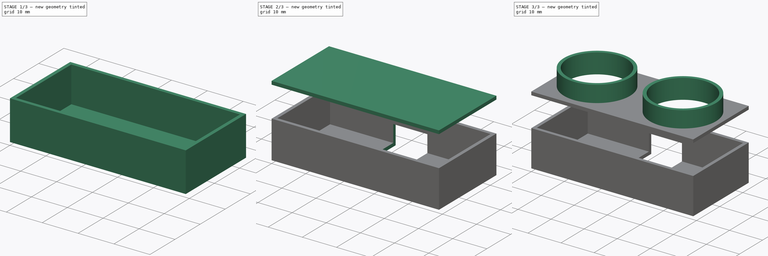
[diagram: build sequence overview — one tinted view per stage of 3, left to right]
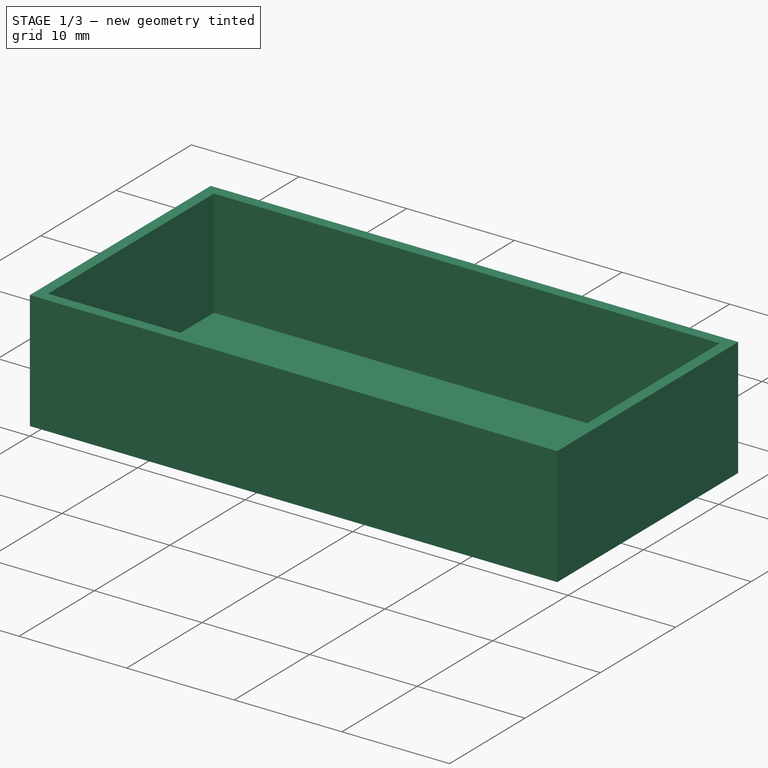
[diagram: stage 1 of 3 — iso view after this stage's code; geometry added in this stage tinted green]
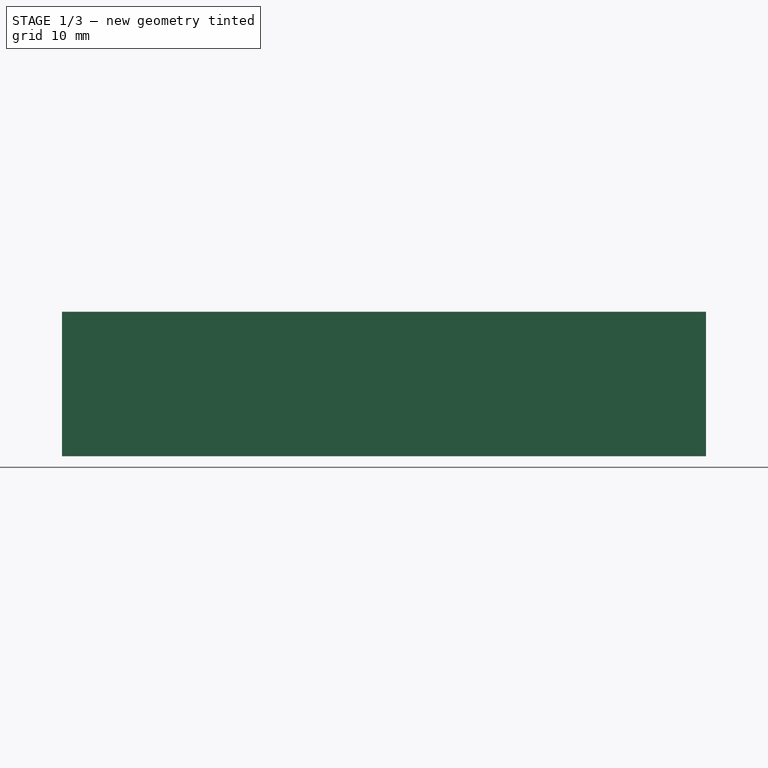
[diagram: stage 1 of 3 — front view after this stage's code; geometry added in this stage tinted green]
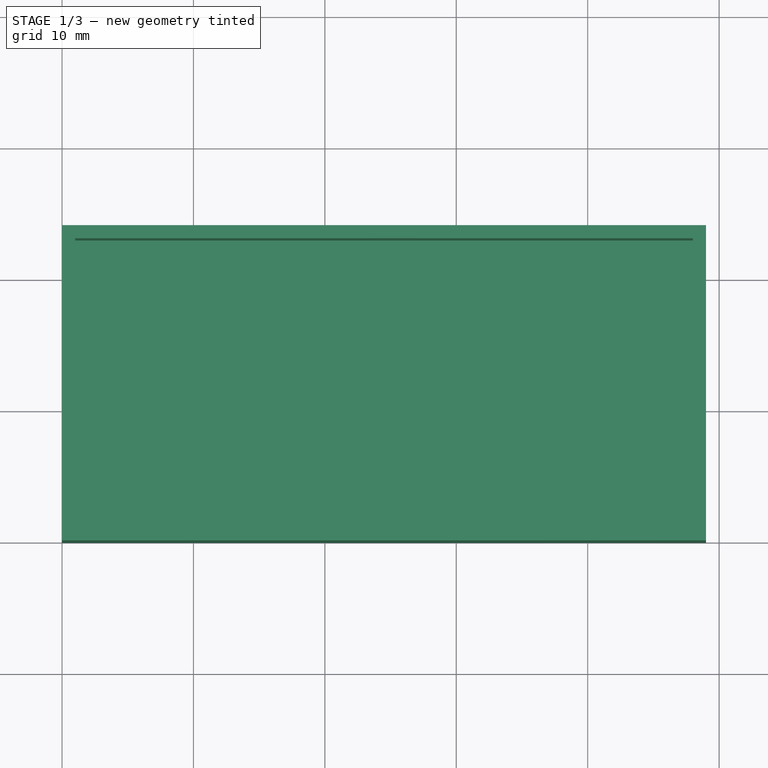
[diagram: stage 1 of 3 — top view after this stage's code; geometry added in this stage tinted green]
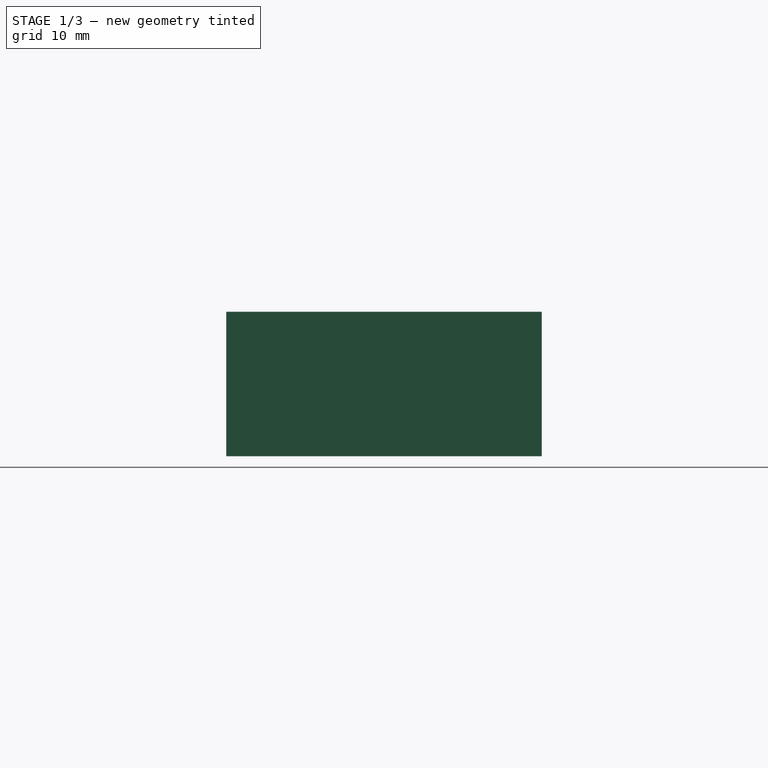
[diagram: stage 1 of 3 — right view after this stage's code; geometry added in this stage tinted green]
FCSTD DOCUMENT  (FreeCAD 2023.1231R38924 (Git))
Label: d-sensor-bracket
License: All rights reserved
LicenseURL: http://en.wikipedia.org/wiki/All_rights_reserved
objects: Sketcher::SketchObject×7, PartDesign::Pad×4, PartDesign::Pocket×3, PartDesign::Body×2
note: 37 computed .brp shape members not serialized (recipe doc carries the construction recipe); baked Part::Feature solids carry a one-line shape summary decoded from their .brp

FEATURE [PartDesign::Body] Body  label="Front"
  AutoGroupSolids = false
  ClaimAllChildren = false
  ExportMode = 0
  Group = -> [Sketch,Pad,Sketch001,Pad001,Sketch002,Pocket]
  InvalidShape = false
  Origin = -> Origin
  Tip = -> Pocket
  TreeRank = 0
  ValidateShape = false
  _ExportChildren = -> [Pad,Pad001,Pocket]
  _GroupVersion = 1
FEATURE [Sketcher::SketchObject] Sketch003
  ArcFitTolerance = 0
  AttachmentSupport = -> [XY_Plane001]
  ExternalBSplineMaxDegree = 0
  ExternalBSplineTolerance = 0
  FullyConstrained = true
  InternalTolerance = 1e-06
  InvalidShape = false
  MakeInternals = false
  MapMode = 5
  Support = -> [XY_Plane001]
  TreeRank = 0
  ValidateShape = false
  sketch-geometry (4):
    g0: LineSegment StartX=0 StartY=24 StartZ=0 EndX=49 EndY=24 EndZ=0
    g1: LineSegment StartX=49 StartY=24 StartZ=0 EndX=49 EndY=0 EndZ=0
    g2: LineSegment StartX=49 StartY=0 StartZ=0 EndX=0 EndY=0 EndZ=0
    g3: LineSegment StartX=0 StartY=0 StartZ=0 EndX=0 EndY=24 EndZ=0
  constraints (12):
    c: Coincident(g0,g1)
    c: Coincident(g1,g2)
    c: Coincident(g2,g3)
    c: Coincident(g3,g0)
    c: Horizontal(g0)
    c: Horizontal(g2)
    c: Vertical(g1)
    c: Vertical(g3)
    c: Distance(g1) = 24
    c: Distance(g0) = 49
    c: DistanceX(g2,g-1) = 0
    c: DistanceY(g2,g-1) = 0
FEATURE [PartDesign::Pad] Pad002
  AddSubType = 0
  AllowMultiFace = false
  AutoTaperInnerAngle = true
  CheckUpToFaceLimits = true
  ClaimChildren = false
  Direction = (0,0,1)
  Fit = 0
  FitJoin = 0
  InnerFit = 0
  InnerFitJoin = 0
  InvalidShape = false
  Length = 1
  Length2 = 100
  NewSolid = false
  Profile = -> Sketch003
  Suppress = false
  TaperInnerAngle = 0
  TaperInnerAngleRev = 0
  TreeRank = 0
  Type = 0
  ValidateShape = false
  _ProfileBasedVersion = 0
FEATURE [Sketcher::SketchObject] Sketch004
  ArcFitTolerance = 0
  AttachmentSupport = -> [XY_Plane001]
  ExternalBSplineMaxDegree = 0
  ExternalBSplineTolerance = 0
  FullyConstrained = true
  InternalTolerance = 1e-06
  InvalidShape = false
  MakeInternals = false
  MapMode = 5
  Support = -> [XY_Plane001]
  TreeRank = 0
  ValidateShape = false
  sketch-geometry (8):
    g0: LineSegment StartX=0 StartY=24 StartZ=0 EndX=49 EndY=24 EndZ=0
    g1: LineSegment StartX=49 StartY=24 StartZ=0 EndX=49 EndY=0 EndZ=0
    g2: LineSegment StartX=49 StartY=0 StartZ=0 EndX=0 EndY=0 EndZ=0
    g3: LineSegment StartX=0 StartY=0 StartZ=0 EndX=0 EndY=24 EndZ=0
    g4: LineSegment StartX=1 StartY=23 StartZ=0 EndX=48 EndY=23 EndZ=0
    g5: LineSegment StartX=48 StartY=23 StartZ=0 EndX=48 EndY=1 EndZ=0
    g6: LineSegment StartX=48 StartY=1 StartZ=0 EndX=1 EndY=1 EndZ=0
    g7: LineSegment StartX=1 StartY=1 StartZ=0 EndX=1 EndY=23 EndZ=0
  constraints (24):
    c: Coincident(g0,g1)
    c: Coincident(g1,g2)
    c: Coincident(g2,g3)
    c: Coincident(g3,g0)
    c: Horizontal(g0)
    c: Horizontal(g2)
    c: Vertical(g1)
    c: Vertical(g3)
    c: Coincident(g4,g5)
    c: Coincident(g5,g6)
    c: Coincident(g6,g7)
    c: Coincident(g7,g4)
    c: Horizontal(g4)
    c: Horizontal(g6)
    c: Vertical(g5)
    c: Vertical(g7)
    c: Distance(g0) = 49
    c: Distance(g1) = 24
    c: Distance(g7) = 22
    c: Distance(g6) = 47
    c: DistanceX(g-1,g2) = 0
    c: DistanceY(g2,g-1) = 0
    c: DistanceY(g2,g6) = 1
    c: DistanceX(g2,g6) = 1
FEATURE [PartDesign::Pad] Pad003
  AddSubType = 0
  AllowMultiFace = false
  AutoTaperInnerAngle = true
  BaseFeature = -> Pad002
  CheckUpToFaceLimits = true
  ClaimChildren = false
  Direction = (0,0,1)
  Fit = 0
  FitJoin = 0
  InnerFit = 0
  InnerFitJoin = 0
  InvalidShape = false
  Length = 11
  Length2 = 100
  NewSolid = false
  Profile = -> Sketch004
  Suppress = false
  TaperInnerAngle = 0
  TaperInnerAngleRev = 0
  TreeRank = 0
  Type = 0
  ValidateShape = false
  _ProfileBasedVersion = 0
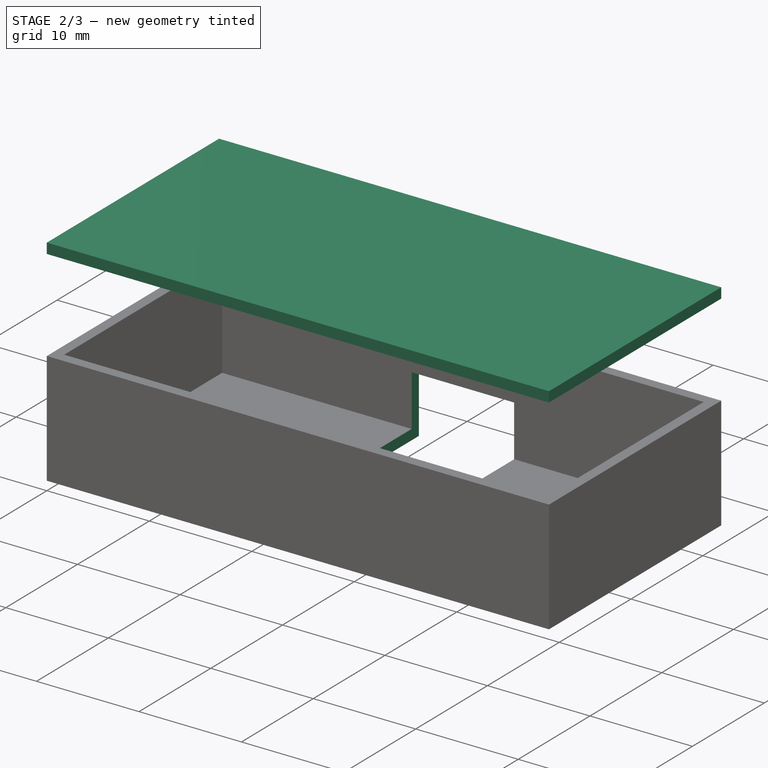
[diagram: stage 2 of 3 — iso view after this stage's code; geometry added in this stage tinted green]
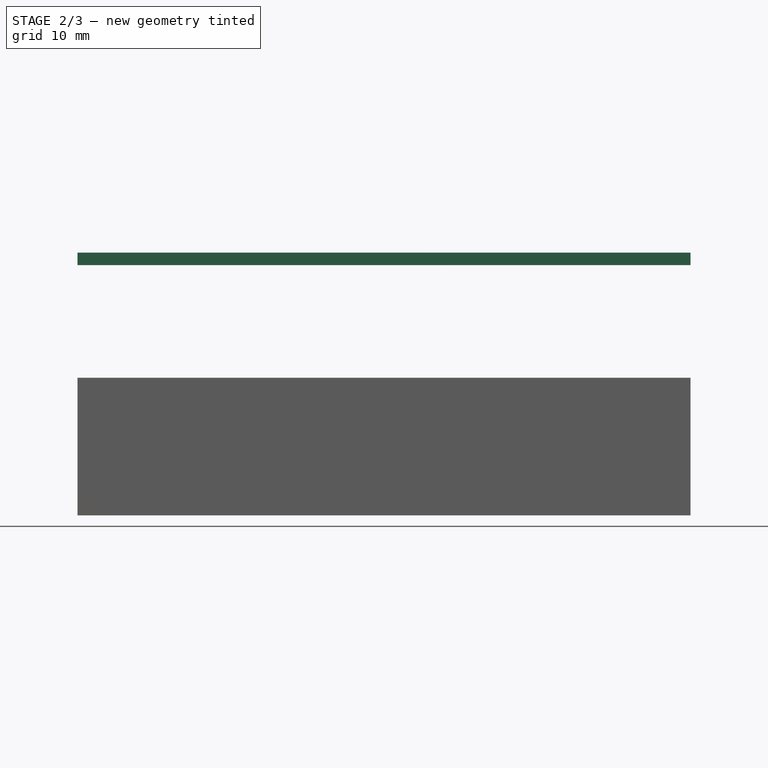
[diagram: stage 2 of 3 — front view after this stage's code; geometry added in this stage tinted green]
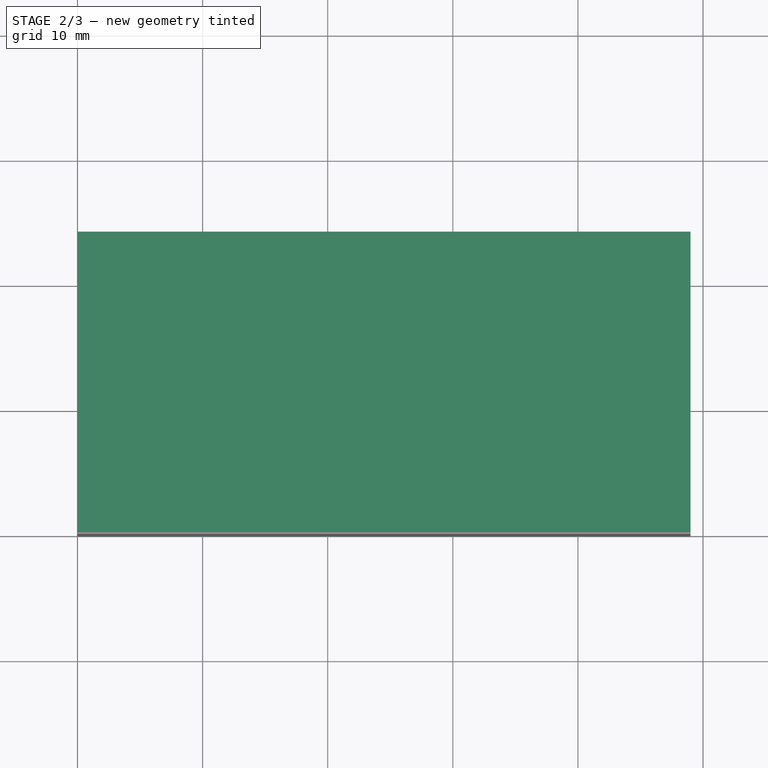
[diagram: stage 2 of 3 — top view after this stage's code; geometry added in this stage tinted green]
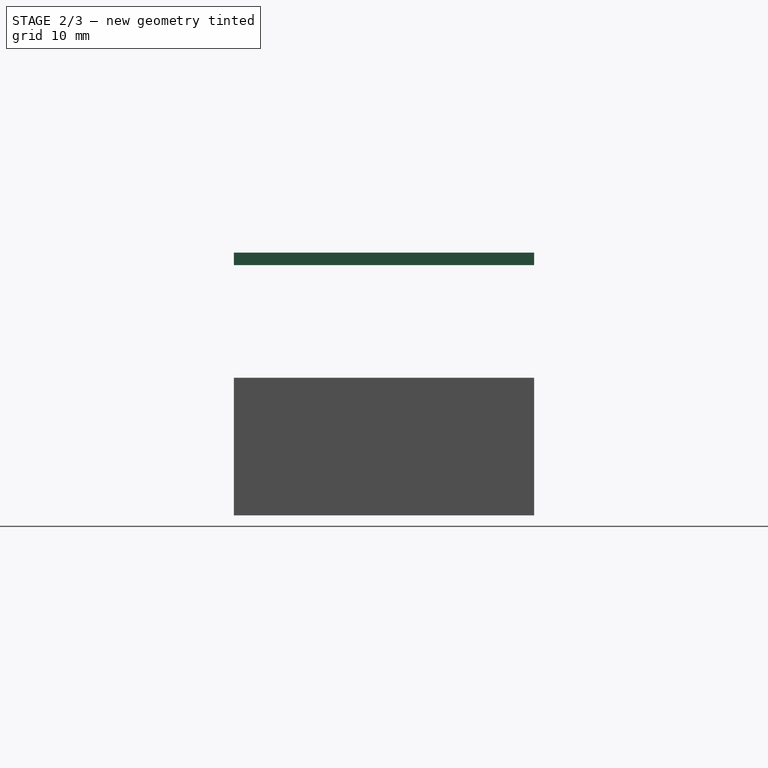
[diagram: stage 2 of 3 — right view after this stage's code; geometry added in this stage tinted green]
FEATURE [Sketcher::SketchObject] Sketch
  ArcFitTolerance = 0
  AttachmentOffset = pos=(0,0,20) rot=(0,0,1;0rad)
  AttachmentSupport = -> [XY_Plane]
  ExternalBSplineMaxDegree = 0
  ExternalBSplineTolerance = 0
  FullyConstrained = true
  InternalTolerance = 1e-06
  InvalidShape = false
  MakeInternals = false
  MapMode = 5
  Placement = pos=(0,0,20) rot=(0,0,1;0rad)
  Support = -> [XY_Plane]
  TreeRank = 0
  ValidateShape = false
  sketch-geometry (4):
    g0: LineSegment StartX=0 StartY=24 StartZ=0 EndX=49 EndY=24 EndZ=0
    g1: LineSegment StartX=49 StartY=24 StartZ=0 EndX=49 EndY=0 EndZ=0
    g2: LineSegment StartX=49 StartY=0 StartZ=0 EndX=0 EndY=0 EndZ=0
    g3: LineSegment StartX=0 StartY=0 StartZ=0 EndX=0 EndY=24 EndZ=0
  constraints (12):
    c: Coincident(g0,g1)
    c: Coincident(g1,g2)
    c: Coincident(g2,g3)
    c: Coincident(g3,g0)
    c: Horizontal(g0)
    c: Horizontal(g2)
    c: Vertical(g1)
    c: Vertical(g3)
    c: DistanceX(g-1,g2) = 0
    c: DistanceY(g-1,g2) = 0
    c: Distance(g3) = 24
    c: Distance(g2) = 49
FEATURE [PartDesign::Pad] Pad
  AddSubType = 0
  AllowMultiFace = false
  AutoTaperInnerAngle = true
  CheckUpToFaceLimits = true
  ClaimChildren = false
  Direction = (0,0,1)
  Fit = 0
  FitJoin = 0
  InnerFit = 0
  InnerFitJoin = 0
  InvalidShape = false
  Length = 1
  Length2 = 100
  NewSolid = false
  Profile = -> Sketch
  Suppress = false
  TaperInnerAngle = 0
  TaperInnerAngleRev = 0
  TreeRank = 0
  Type = 0
  ValidateShape = false
  _ProfileBasedVersion = 0
FEATURE [Sketcher::SketchObject] Sketch005
  ArcFitTolerance = 0
  AttachmentSupport = -> [Pad003]
  ExternalBSplineMaxDegree = 0
  ExternalBSplineTolerance = 0
  FullyConstrained = true
  InternalTolerance = 1e-06
  InvalidShape = false
  MakeInternals = false
  MapMode = 5
  Placement = pos=(0,24,0) rot=(0,0.707107,0.707107;3.14159rad)
  Support = -> [Pad003]
  TreeRank = 0
  ValidateShape = false
  sketch-geometry (4):
    g0: LineSegment StartX=-29.5 StartY=6 StartZ=0 EndX=-19.5 EndY=6 EndZ=0
    g1: LineSegment StartX=-19.5 StartY=6 StartZ=0 EndX=-19.5 EndY=-4 EndZ=0
    g2: LineSegment StartX=-19.5 StartY=-4 StartZ=0 EndX=-29.5 EndY=-4 EndZ=0
    g3: LineSegment StartX=-29.5 StartY=-4 StartZ=0 EndX=-29.5 EndY=6 EndZ=0
  constraints (12):
    c: Coincident(g0,g1)
    c: Coincident(g1,g2)
    c: Coincident(g2,g3)
    c: Coincident(g3,g0)
    c: Horizontal(g0)
    c: Horizontal(g2)
    c: Vertical(g1)
    c: Vertical(g3)
    c: Distance(g0) = 10
    c: Distance(g1) = 10
    c: DistanceX(g1,g-1) = 19.5
    c: DistanceY(g-1,g1) = -4
FEATURE [PartDesign::Pocket] Pocket001
  AddSubType = 1
  AllowMultiFace = false
  AlongSketchNormal = false
  AutoTaperInnerAngle = true
  BaseFeature = -> Pad003
  CheckUpToFaceLimits = true
  ClaimChildren = false
  Direction = (0,-1,2e-16)
  Fit = 0
  FitJoin = 0
  InnerFit = 0
  InnerFitJoin = 0
  InvalidShape = false
  Length = 6
  Length2 = 100
  NewSolid = false
  Profile = -> Sketch005
  Suppress = false
  TaperInnerAngle = 0
  TaperInnerAngleRev = 0
  TreeRank = 0
  Type = 0
  ValidateShape = false
  _ProfileBasedVersion = 0
  _Version = 0
FEATURE [Sketcher::SketchObject] Sketch006
  ArcFitTolerance = 0
  AttachmentSupport = -> [Pocket001]
  ExternalBSplineMaxDegree = 0
  ExternalBSplineTolerance = 0
  FullyConstrained = false
  InternalTolerance = 1e-06
  InvalidShape = false
  MakeInternals = false
  MapMode = 5
  Placement = pos=(0,0,1) rot=(0,0,1;0rad)
  Support = -> [Pocket001]
  TreeRank = 0
  ValidateShape = false
  sketch-geometry (2):
    g0: Circle CenterX=17 CenterY=13.7272 CenterZ=0 NormalX=0 NormalY=0 NormalZ=1 AngleXU=0 Radius=2
    g1: Circle CenterX=32 CenterY=13.7272 CenterZ=0 NormalX=0 NormalY=0 NormalZ=1 AngleXU=0 Radius=2
  constraints (5):
    c: Radius(g0) = 2
    c: Radius(g1) = 2
    c: DistanceY(g1,g0) = 0
    c: DistanceX(g0,g1) = 15
    c: DistanceX(g-1,g0) = 17
FEATURE [PartDesign::Pocket] Pocket002
  AddSubType = 1
  AllowMultiFace = false
  AutoTaperInnerAngle = true
  BaseFeature = -> Pocket001
  CheckUpToFaceLimits = true
  ClaimChildren = false
  Direction = (0,0,-1)
  Fit = 0
  FitJoin = 0
  InnerFit = 0
  InnerFitJoin = 0
  InvalidShape = false
  Length = 5
  Length2 = 100
  NewSolid = false
  Profile = -> Sketch006
  Suppress = false
  TaperInnerAngle = 0
  TaperInnerAngleRev = 0
  TreeRank = 0
  Type = 0
  ValidateShape = false
  _ProfileBasedVersion = 0
  _Version = 0
FEATURE [PartDesign::Body] Body001  label="Rear"
  AutoGroupSolids = false
  ClaimAllChildren = false
  ExportMode = 0
  Group = -> [Sketch003,Pad002,Sketch004,Pad003,Sketch005,Pocket001,Sketch006,Pocket002]
  InvalidShape = false
  Origin = -> Origin001
  Tip = -> Pocket002
  TreeRank = 0
  ValidateShape = false
  _ExportChildren = -> [Pad002,Pad003,Pocket001,Pocket002]
  _GroupVersion = 1
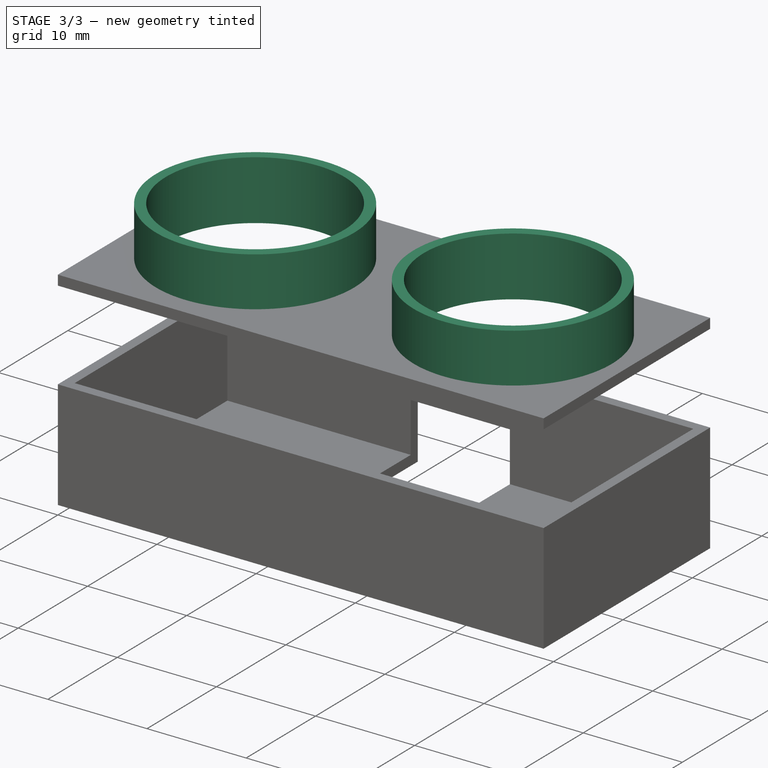
[diagram: stage 3 of 3 — iso view after this stage's code; geometry added in this stage tinted green]
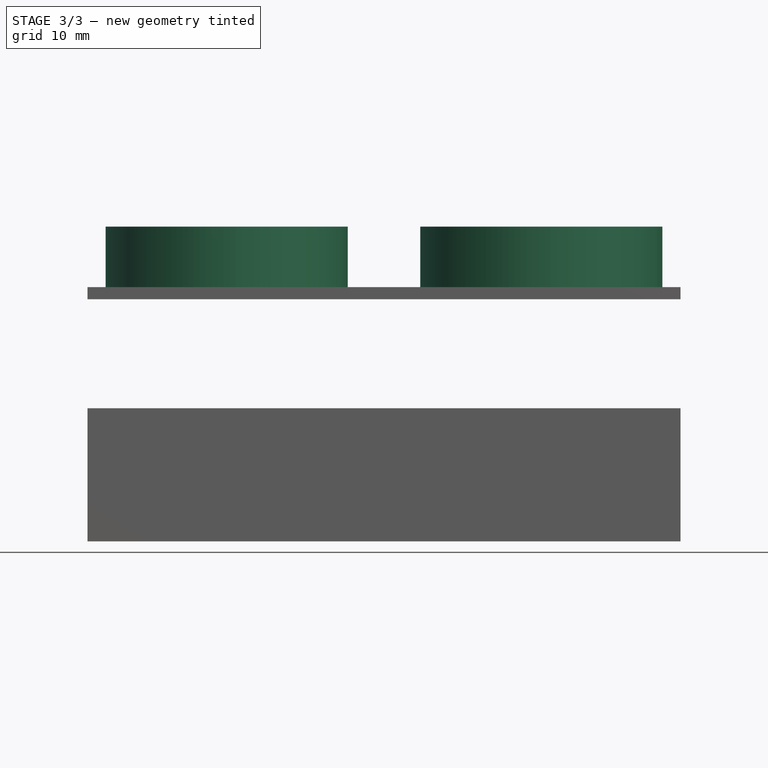
[diagram: stage 3 of 3 — front view after this stage's code; geometry added in this stage tinted green]
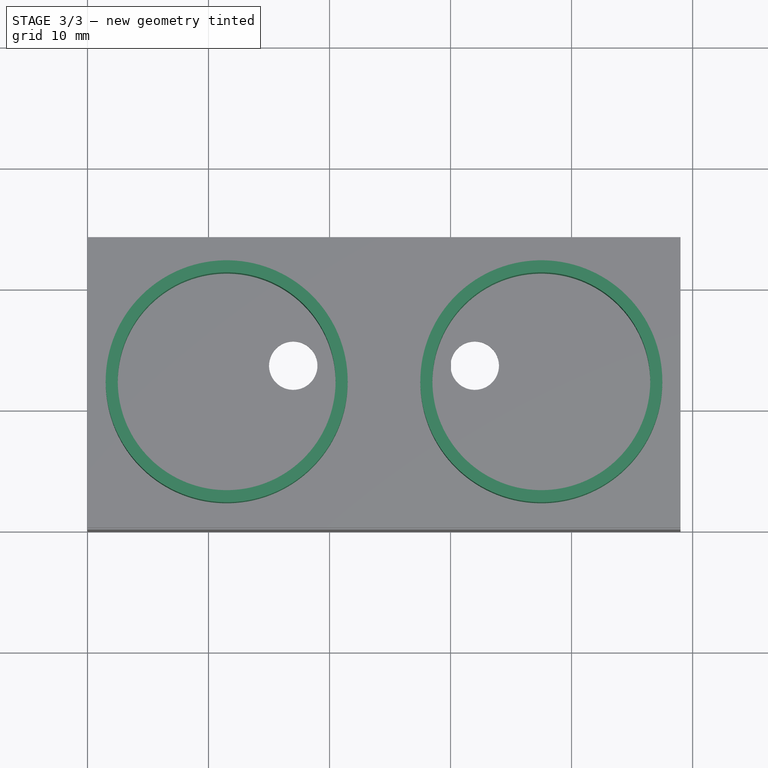
[diagram: stage 3 of 3 — top view after this stage's code; geometry added in this stage tinted green]
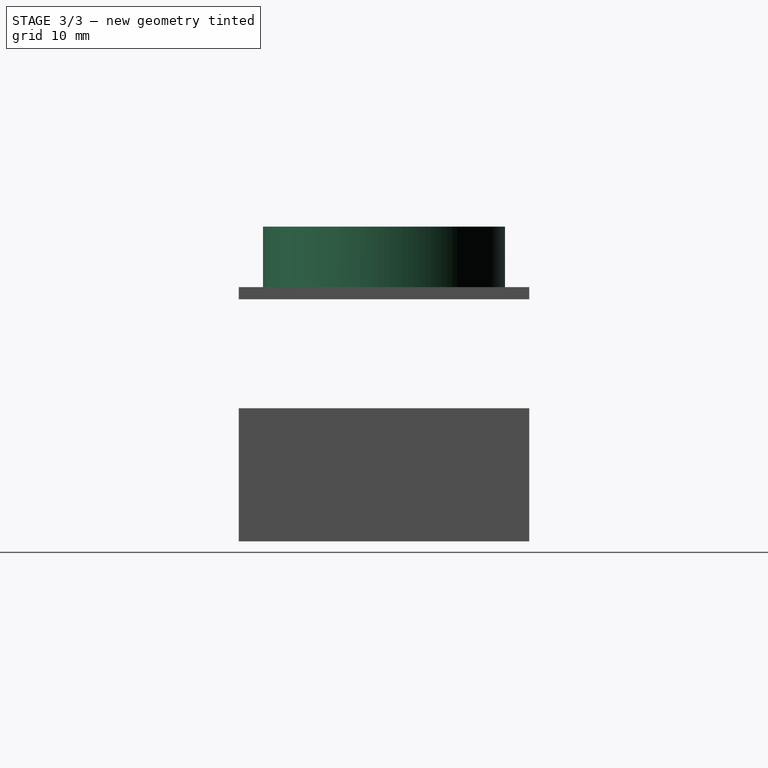
[diagram: stage 3 of 3 — right view after this stage's code; geometry added in this stage tinted green]
FEATURE [Sketcher::SketchObject] Sketch001
  ArcFitTolerance = 0
  AttachmentOffset = pos=(0,0,20) rot=(0,0,1;0rad)
  AttachmentSupport = -> [XY_Plane]
  ExternalBSplineMaxDegree = 0
  ExternalBSplineTolerance = 0
  FullyConstrained = true
  InternalTolerance = 1e-06
  InvalidShape = false
  MakeInternals = false
  MapMode = 5
  Placement = pos=(0,0,20) rot=(0,0,1;0rad)
  Support = -> [XY_Plane]
  TreeRank = 0
  ValidateShape = false
  sketch-geometry (2):
    g0: Circle CenterX=11.5 CenterY=12 CenterZ=0 NormalX=0 NormalY=0 NormalZ=1 AngleXU=0 Radius=10
    g1: Circle CenterX=37.5 CenterY=12 CenterZ=0 NormalX=0 NormalY=0 NormalZ=1 AngleXU=0 Radius=10
  constraints (6):
    c: DistanceX(g0,g1) = 26
    c: DistanceY(g0,g1) = 0
    c: Radius(g0) = 10
    c: Radius(g1) = 10
    c: DistanceY(g-1,g0) = 12
    c: DistanceX(g-1,g0) = 11.5
FEATURE [PartDesign::Pad] Pad001
  AddSubType = 0
  AllowMultiFace = false
  AutoTaperInnerAngle = true
  BaseFeature = -> Pad
  CheckUpToFaceLimits = true
  ClaimChildren = false
  Direction = (0,0,1)
  Fit = 0
  FitJoin = 0
  InnerFit = 0
  InnerFitJoin = 0
  InvalidShape = false
  Length = 6
  Length2 = 100
  NewSolid = false
  Profile = -> Sketch001
  Suppress = false
  TaperInnerAngle = 0
  TaperInnerAngleRev = 0
  TreeRank = 0
  Type = 0
  ValidateShape = false
  _ProfileBasedVersion = 0
FEATURE [Sketcher::SketchObject] Sketch002
  ArcFitTolerance = 0
  AttachmentOffset = pos=(0,0,20) rot=(0,0,1;0rad)
  AttachmentSupport = -> [XY_Plane]
  ExternalBSplineMaxDegree = 0
  ExternalBSplineTolerance = 0
  FullyConstrained = true
  InternalTolerance = 1e-06
  InvalidShape = false
  MakeInternals = false
  MapMode = 5
  Placement = pos=(0,0,20) rot=(0,0,1;0rad)
  Support = -> [XY_Plane]
  TreeRank = 0
  ValidateShape = false
  sketch-geometry (2):
    g0: Circle CenterX=11.5 CenterY=12 CenterZ=0 NormalX=0 NormalY=0 NormalZ=1 AngleXU=0 Radius=9
    g1: Circle CenterX=37.5 CenterY=12 CenterZ=0 NormalX=0 NormalY=0 NormalZ=1 AngleXU=0 Radius=9
  constraints (6):
    c: Radius(g0) = 9
    c: Radius(g1) = 9
    c: DistanceX(g0,g1) = 26
    c: DistanceY(g1,g0) = 0
    c: DistanceY(g-1,g0) = 12
    c: DistanceX(g-1,g0) = 11.5
FEATURE [PartDesign::Pocket] Pocket
  AddSubType = 1
  AllowMultiFace = false
  AutoTaperInnerAngle = true
  BaseFeature = -> Pad001
  CheckUpToFaceLimits = true
  ClaimChildren = false
  Direction = (0,0,-1)
  Fit = 0
  FitJoin = 0
  InnerFit = 0
  InnerFitJoin = 0
  InvalidShape = false
  Length = 20
  Length2 = 100
  Midplane = true
  NewSolid = false
  Profile = -> Sketch002
  Suppress = false
  TaperInnerAngle = 0
  TaperInnerAngleRev = 0
  TreeRank = 0
  Type = 0
  ValidateShape = false
  _ProfileBasedVersion = 0
  _Version = 0
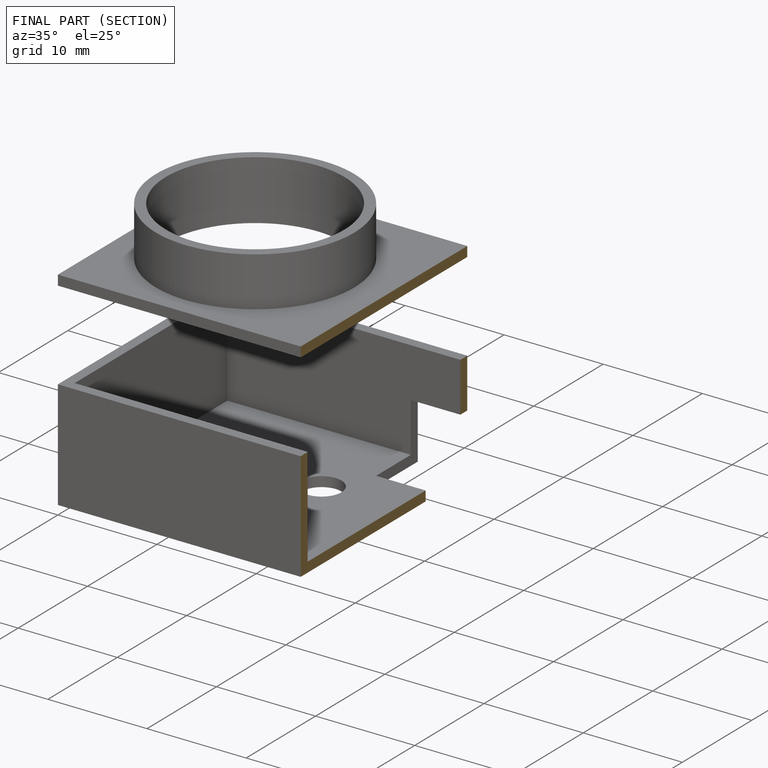
[diagram: finished part — half-section view (interior)]
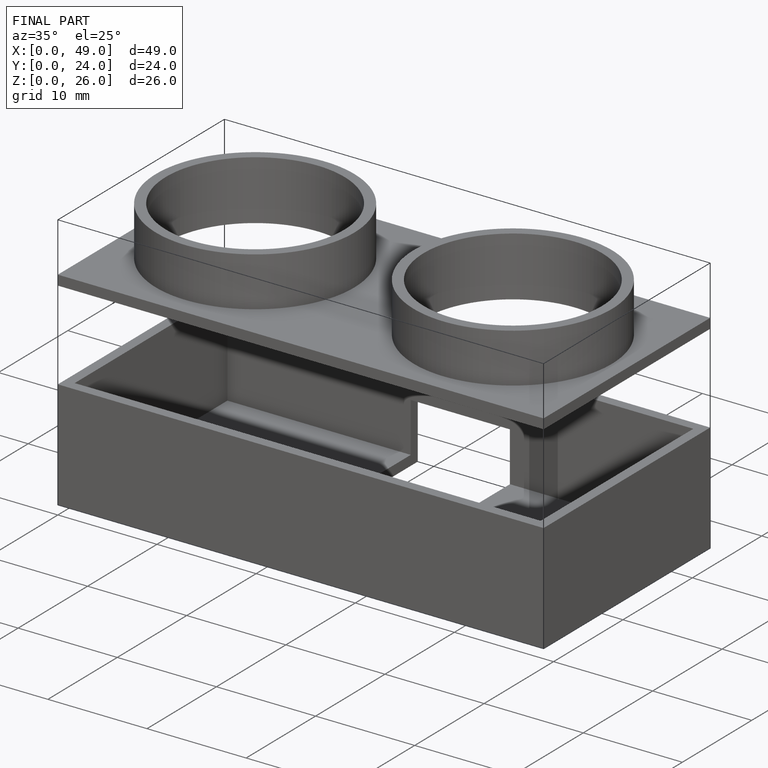
[diagram: finished part — iso view with bounding-box wireframe]
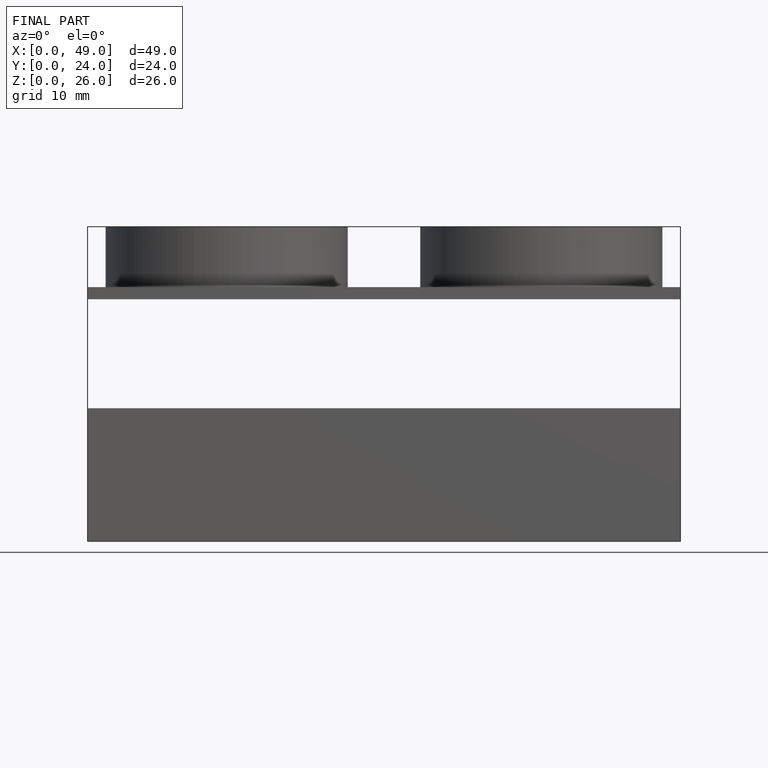
[diagram: finished part — front view with bounding-box wireframe]
